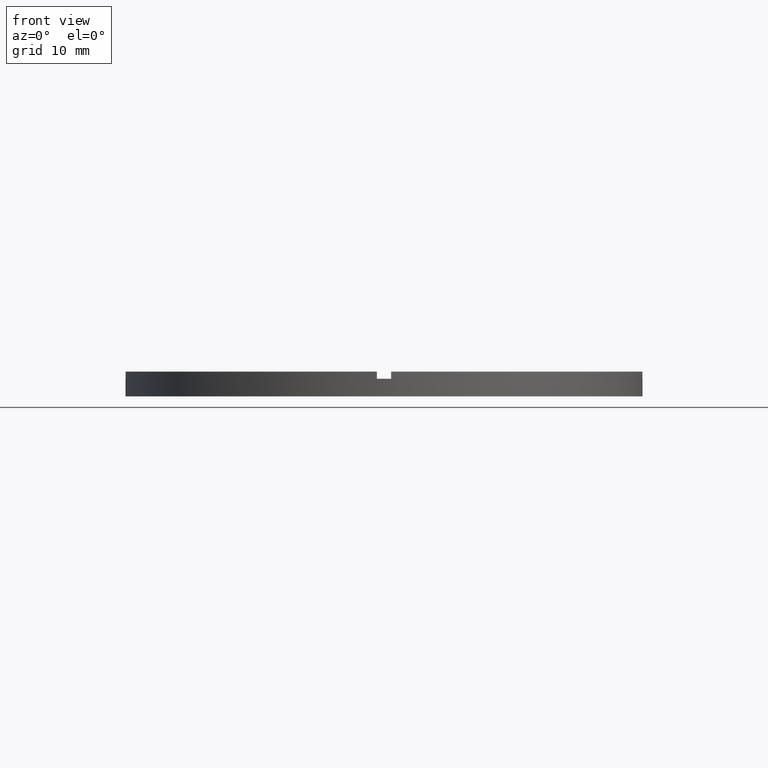
[diagram: clean part render]
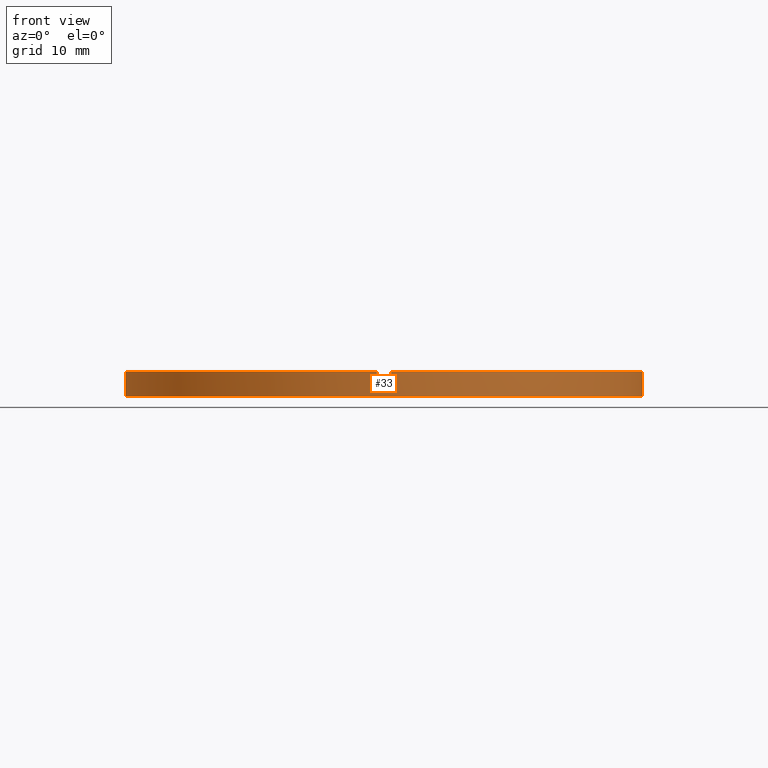
[diagram: same view with one face highlighted and labeled with its STEP entity id]
A machine part, front view. The second image highlights one B-rep face of the part: STEP entity #33.
In plain terms, the highlighted cylindrical surface (partial cylindrical patch) has radius 36.5 mm, axis along (-0, -0, -1).
Its self-contained STEP definition (entity closure, byte-faithful):
#4 = EDGE_CURVE ( 'NONE', #120, #640, #110, .T. ) ;
#12 = AXIS2_PLACEMENT_3D ( 'NONE', #181, #567, #645 ) ;
#13 = DIRECTION ( 'NONE',  ( 1.000000000000000000, 0.000000000000000000, 0.000000000000000000 ) ) ;
#17 = CARTESIAN_POINT ( 'NONE',  ( 36.50000000000000000, 4.469960816887838430E-15, 2.500000000000000000 ) ) ;
#25 = AXIS2_PLACEMENT_3D ( 'NONE', #667, #234, #545 ) ;
#33 = ADVANCED_FACE ( 'NONE', ( #362 ), #81, .T. ) ;
#37 = CARTESIAN_POINT ( 'NONE',  ( 0.000000000000000000, 0.000000000000000000, 2.500000000000000000 ) ) ;
#43 = CARTESIAN_POINT ( 'NONE',  ( 0.000000000000000000, 0.000000000000000000, 3.500000000000000000 ) ) ;
#44 = CARTESIAN_POINT ( 'NONE',  ( 0.9999999999998400169, -36.48629879831606360, 3.500000000000000000 ) ) ;
#62 = EDGE_CURVE ( 'NONE', #382, #163, #605, .T. ) ;
#66 = VECTOR ( 'NONE', #705, 1000.000000000000000 ) ;
#75 = CARTESIAN_POINT ( 'NONE',  ( -1.000000000000160094, -36.48629879831604939, 3.500000000000000000 ) ) ;
#77 = LINE ( 'NONE', #164, #66 ) ;
#81 = CYLINDRICAL_SURFACE ( 'NONE', #12, 36.50000000000000000 ) ;
#83 = CIRCLE ( 'NONE', #500, 36.50000000000000000 ) ;
#85 = DIRECTION ( 'NONE',  ( -0.000000000000000000, -0.000000000000000000, -1.000000000000000000 ) ) ;
#88 = CARTESIAN_POINT ( 'NONE',  ( -36.48629879831605649, -1.000000000000027311, 2.500000000000000000 ) ) ;
#99 = VECTOR ( 'NONE', #227, 1000.000000000000000 ) ;
#100 = ORIENTED_EDGE ( 'NONE', *, *, #316, .F. ) ;
#106 = CIRCLE ( 'NONE', #735, 36.50000000000000000 ) ;
#110 = LINE ( 'NONE', #417, #99 ) ;
#111 = ORIENTED_EDGE ( 'NONE', *, *, #418, .T. ) ;
#112 = VECTOR ( 'NONE', #85, 1000.000000000000000 ) ;
#120 = VERTEX_POINT ( 'NONE', #304 ) ;
#140 = EDGE_LOOP ( 'NONE', ( #441, #264, #111, #375, #177, #449, #689, #100, #518, #180, #776, #145 ) ) ;
#141 = CARTESIAN_POINT ( 'NONE',  ( -36.48629879831605649, -1.000000000000027311, 3.500000000000000000 ) ) ;
#145 = ORIENTED_EDGE ( 'NONE', *, *, #170, .T. ) ;
#146 = CARTESIAN_POINT ( 'NONE',  ( 36.48629879831604939, -1.000000000000157652, 3.500000000000000000 ) ) ;
#151 = DIRECTION ( 'NONE',  ( 0.000000000000000000, 0.000000000000000000, 1.000000000000000000 ) ) ;
#160 = CARTESIAN_POINT ( 'NONE',  ( 0.000000000000000000, 0.000000000000000000, 2.500000000000000000 ) ) ;
#163 = VERTEX_POINT ( 'NONE', #302 ) ;
#164 = CARTESIAN_POINT ( 'NONE',  ( 36.50000000000000000, 4.469960816887838430E-15, 3.500000000000000000 ) ) ;
#168 = VECTOR ( 'NONE', #577, 1000.000000000000000 ) ;
#169 = LINE ( 'NONE', #217, #168 ) ;
#170 = EDGE_CURVE ( 'NONE', #640, #282, #106, .T. ) ;
#171 = VECTOR ( 'NONE', #664, 1000.000000000000000 ) ;
#177 = ORIENTED_EDGE ( 'NONE', *, *, #195, .T. ) ;
#180 = ORIENTED_EDGE ( 'NONE', *, *, #275, .F. ) ;
#181 = CARTESIAN_POINT ( 'NONE',  ( 0.000000000000000000, 0.000000000000000000, 3.500000000000000000 ) ) ;
#195 = EDGE_CURVE ( 'NONE', #527, #163, #606, .T. ) ;
#205 = EDGE_CURVE ( 'NONE', #412, #608, #83, .T. ) ;
#214 = AXIS2_PLACEMENT_3D ( 'NONE', #216, #739, #513 ) ;
#216 = CARTESIAN_POINT ( 'NONE',  ( 0.000000000000000000, 0.000000000000000000, 3.500000000000000000 ) ) ;
#217 = CARTESIAN_POINT ( 'NONE',  ( 36.48629879831604939, -1.000000000000157652, 3.500000000000000000 ) ) ;
#227 = DIRECTION ( 'NONE',  ( -0.000000000000000000, -0.000000000000000000, -1.000000000000000000 ) ) ;
#234 = DIRECTION ( 'NONE',  ( 0.000000000000000000, 0.000000000000000000, 1.000000000000000000 ) ) ;
#240 = CARTESIAN_POINT ( 'NONE',  ( -1.000000000000160094, -36.48629879831604939, 3.500000000000000000 ) ) ;
#247 = DIRECTION ( 'NONE',  ( 1.000000000000000000, 0.000000000000000000, 0.000000000000000000 ) ) ;
#264 = ORIENTED_EDGE ( 'NONE', *, *, #205, .F. ) ;
#275 = EDGE_CURVE ( 'NONE', #120, #392, #670, .T. ) ;
#282 = VERTEX_POINT ( 'NONE', #297 ) ;
#283 = CARTESIAN_POINT ( 'NONE',  ( 36.48629879831604939, -1.000000000000157652, 2.500000000000000000 ) ) ;
#284 = VERTEX_POINT ( 'NONE', #146 ) ;
#287 = CARTESIAN_POINT ( 'NONE',  ( 0.9999999999998400169, -36.48629879831606360, 3.500000000000000000 ) ) ;
#297 = CARTESIAN_POINT ( 'NONE',  ( 36.50000000000000000, 4.469960816887838430E-15, 0.000000000000000000 ) ) ;
#302 = CARTESIAN_POINT ( 'NONE',  ( 0.9999999999998400169, -36.48629879831606360, 2.500000000000000000 ) ) ;
#304 = CARTESIAN_POINT ( 'NONE',  ( -36.50000000000000000, 0.000000000000000000, 2.500000000000000000 ) ) ;
#310 = CARTESIAN_POINT ( 'NONE',  ( 0.000000000000000000, 0.000000000000000000, 0.000000000000000000 ) ) ;
#316 = EDGE_CURVE ( 'NONE', #540, #424, #675, .T. ) ;
#318 = DIRECTION ( 'NONE',  ( -0.000000000000000000, -0.000000000000000000, -1.000000000000000000 ) ) ;
#321 = CIRCLE ( 'NONE', #214, 36.50000000000000000 ) ;
#346 = CARTESIAN_POINT ( 'NONE',  ( -36.48629879831605649, -1.000000000000027311, 3.500000000000000000 ) ) ;
#353 = DIRECTION ( 'NONE',  ( 0.000000000000000000, 0.000000000000000000, 1.000000000000000000 ) ) ;
#362 = FACE_OUTER_BOUND ( 'NONE', #140, .T. ) ;
#375 = ORIENTED_EDGE ( 'NONE', *, *, #660, .F. ) ;
#382 = VERTEX_POINT ( 'NONE', #767 ) ;
#392 = VERTEX_POINT ( 'NONE', #88 ) ;
#412 = VERTEX_POINT ( 'NONE', #283 ) ;
#417 = CARTESIAN_POINT ( 'NONE',  ( -36.50000000000000000, 0.000000000000000000, 3.500000000000000000 ) ) ;
#418 = EDGE_CURVE ( 'NONE', #412, #284, #169, .T. ) ;
#424 = VERTEX_POINT ( 'NONE', #240 ) ;
#427 = EDGE_CURVE ( 'NONE', #382, #424, #679, .T. ) ;
#436 = EDGE_CURVE ( 'NONE', #540, #392, #611, .T. ) ;
#441 = ORIENTED_EDGE ( 'NONE', *, *, #661, .F. ) ;
#449 = ORIENTED_EDGE ( 'NONE', *, *, #62, .F. ) ;
#500 = AXIS2_PLACEMENT_3D ( 'NONE', #37, #353, #247 ) ;
#509 = DIRECTION ( 'NONE',  ( -0.000000000000000000, 0.000000000000000000, 1.000000000000000000 ) ) ;
#513 = DIRECTION ( 'NONE',  ( 1.000000000000000000, 0.000000000000000000, 0.000000000000000000 ) ) ;
#518 = ORIENTED_EDGE ( 'NONE', *, *, #436, .T. ) ;
#527 = VERTEX_POINT ( 'NONE', #44 ) ;
#540 = VERTEX_POINT ( 'NONE', #141 ) ;
#545 = DIRECTION ( 'NONE',  ( 1.000000000000000000, 0.000000000000000000, 0.000000000000000000 ) ) ;
#567 = DIRECTION ( 'NONE',  ( -0.000000000000000000, -0.000000000000000000, -1.000000000000000000 ) ) ;
#577 = DIRECTION ( 'NONE',  ( 0.000000000000000000, 0.000000000000000000, 1.000000000000000000 ) ) ;
#590 = DIRECTION ( 'NONE',  ( 1.000000000000000000, 0.000000000000000000, 0.000000000000000000 ) ) ;
#605 = CIRCLE ( 'NONE', #752, 36.50000000000000000 ) ;
#606 = LINE ( 'NONE', #287, #112 ) ;
#608 = VERTEX_POINT ( 'NONE', #17 ) ;
#609 = VECTOR ( 'NONE', #318, 1000.000000000000000 ) ;
#611 = LINE ( 'NONE', #346, #609 ) ;
#640 = VERTEX_POINT ( 'NONE', #763 ) ;
#645 = DIRECTION ( 'NONE',  ( -1.000000000000000000, 0.000000000000000000, 0.000000000000000000 ) ) ;
#660 = EDGE_CURVE ( 'NONE', #527, #284, #321, .T. ) ;
#661 = EDGE_CURVE ( 'NONE', #608, #282, #77, .T. ) ;
#664 = DIRECTION ( 'NONE',  ( 0.000000000000000000, 0.000000000000000000, 1.000000000000000000 ) ) ;
#667 = CARTESIAN_POINT ( 'NONE',  ( 0.000000000000000000, 0.000000000000000000, 2.500000000000000000 ) ) ;
#670 = CIRCLE ( 'NONE', #25, 36.50000000000000000 ) ;
#675 = CIRCLE ( 'NONE', #779, 36.50000000000000000 ) ;
#679 = LINE ( 'NONE', #75, #171 ) ;
#689 = ORIENTED_EDGE ( 'NONE', *, *, #427, .T. ) ;
#705 = DIRECTION ( 'NONE',  ( -0.000000000000000000, -0.000000000000000000, -1.000000000000000000 ) ) ;
#707 = DIRECTION ( 'NONE',  ( 1.000000000000000000, 0.000000000000000000, 0.000000000000000000 ) ) ;
#724 = DIRECTION ( 'NONE',  ( 0.000000000000000000, 0.000000000000000000, 1.000000000000000000 ) ) ;
#735 = AXIS2_PLACEMENT_3D ( 'NONE', #310, #151, #13 ) ;
#739 = DIRECTION ( 'NONE',  ( 0.000000000000000000, 0.000000000000000000, 1.000000000000000000 ) ) ;
#752 = AXIS2_PLACEMENT_3D ( 'NONE', #160, #509, #707 ) ;
#763 = CARTESIAN_POINT ( 'NONE',  ( -36.50000000000000000, 0.000000000000000000, 0.000000000000000000 ) ) ;
#767 = CARTESIAN_POINT ( 'NONE',  ( -1.000000000000160094, -36.48629879831604939, 2.500000000000000000 ) ) ;
#776 = ORIENTED_EDGE ( 'NONE', *, *, #4, .T. ) ;
#779 = AXIS2_PLACEMENT_3D ( 'NONE', #43, #724, #590 ) ;